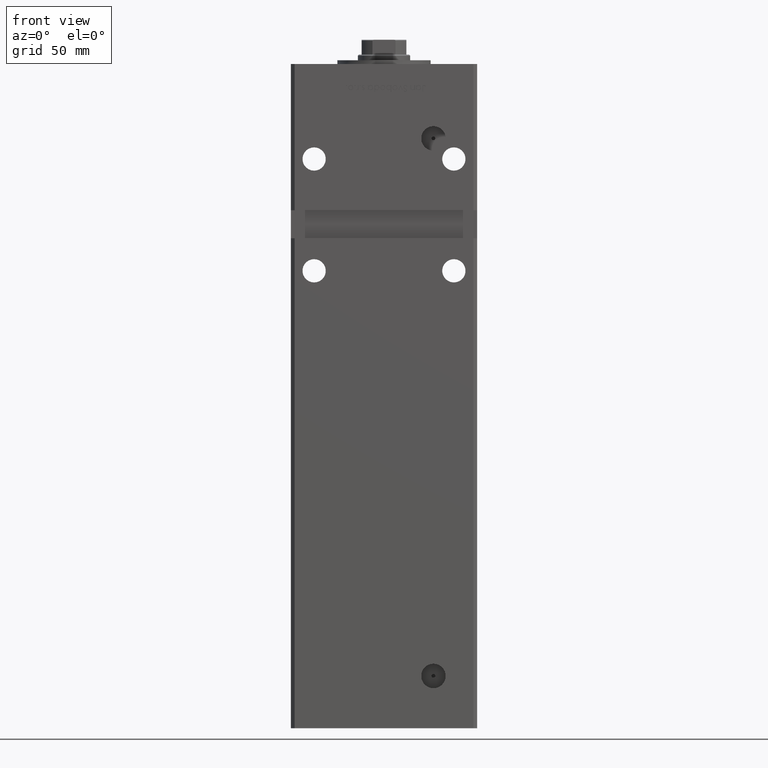
[diagram: clean part render]
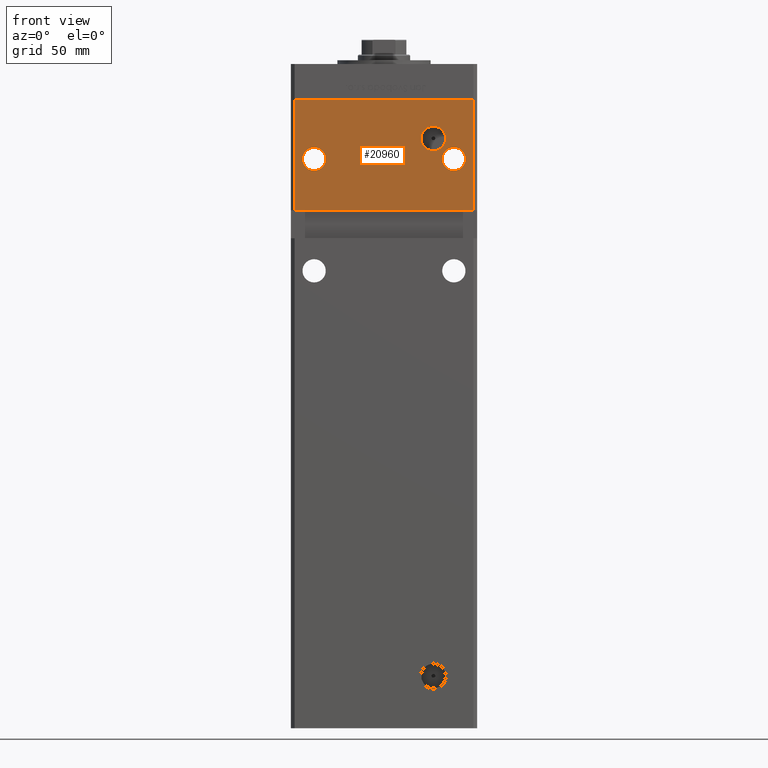
[diagram: same view with one face highlighted and labeled with its STEP entity id]
A machine part, front view. The second image highlights one B-rep face of the part: STEP entity #20960.
In plain terms, the highlighted planar face has unit normal (0, 1, 0).
Its self-contained STEP definition (entity closure, byte-faithful):
#134 = EDGE_CURVE ( 'NONE', #27580, #12963, #18083, .T. ) ;
#354 = LINE ( 'NONE', #33097, #51847 ) ;
#372 = EDGE_CURVE ( 'NONE', #13807, #27580, #354, .T. ) ;
#373 = VECTOR ( 'NONE', #52781, 1000.000000000000000 ) ;
#1136 = VERTEX_POINT ( 'NONE', #50315 ) ;
#1932 = CARTESIAN_POINT ( 'NONE',  ( 47.99999999999998579, -43.50000000000000000, 259.0000000000000000 ) ) ;
#2025 = FACE_OUTER_BOUND ( 'NONE', #21056, .T. ) ;
#2055 = AXIS2_PLACEMENT_3D ( 'NONE', #15086, #27442, #43842 ) ;
#2840 = AXIS2_PLACEMENT_3D ( 'NONE', #26168, #51187, #30742 ) ;
#3025 = CIRCLE ( 'NONE', #11627, 6.249999999999977796 ) ;
#3179 = AXIS2_PLACEMENT_3D ( 'NONE', #8836, #20917, #3780 ) ;
#3780 = DIRECTION ( 'NONE',  ( 0.000000000000000000, 0.000000000000000000, 1.000000000000000000 ) ) ;
#5466 = CIRCLE ( 'NONE', #2055, 6.249999999999977796 ) ;
#6035 = EDGE_CURVE ( 'NONE', #47278, #13807, #12212, .T. ) ;
#7151 = CARTESIAN_POINT ( 'NONE',  ( 47.99999999999998579, -43.50000000000000000, 318.5000000000000000 ) ) ;
#7481 = CIRCLE ( 'NONE', #3179, 6.249999999999977796 ) ;
#7506 = VERTEX_POINT ( 'NONE', #22146 ) ;
#8185 = CARTESIAN_POINT ( 'NONE',  ( -47.99999999999998579, -43.50000000000000000, 318.5000000000000000 ) ) ;
#8836 = CARTESIAN_POINT ( 'NONE',  ( -37.50000000000000000, -43.50000000000000000, 286.5000000000000000 ) ) ;
#9075 = ORIENTED_EDGE ( 'NONE', *, *, #41371, .T. ) ;
#9352 = CIRCLE ( 'NONE', #49735, 6.249999999999977796 ) ;
#9948 = CARTESIAN_POINT ( 'NONE',  ( -47.99999999999998579, -43.50000000000000000, 318.5000000000000000 ) ) ;
#11060 = CIRCLE ( 'NONE', #23926, 6.579999999999975202 ) ;
#11173 = ORIENTED_EDGE ( 'NONE', *, *, #134, .F. ) ;
#11403 = ORIENTED_EDGE ( 'NONE', *, *, #28720, .T. ) ;
#11627 = AXIS2_PLACEMENT_3D ( 'NONE', #14783, #18798, #31154 ) ;
#11992 = ORIENTED_EDGE ( 'NONE', *, *, #49029, .T. ) ;
#12212 = LINE ( 'NONE', #8185, #30434 ) ;
#12271 = ORIENTED_EDGE ( 'NONE', *, *, #47130, .T. ) ;
#12963 = VERTEX_POINT ( 'NONE', #47912 ) ;
#13807 = VERTEX_POINT ( 'NONE', #7151 ) ;
#14376 = FACE_BOUND ( 'NONE', #51742, .T. ) ;
#14783 = CARTESIAN_POINT ( 'NONE',  ( 37.50000000000000000, -43.50000000000000000, 286.5000000000000000 ) ) ;
#14892 = DIRECTION ( 'NONE',  ( 0.000000000000000000, 0.000000000000000000, 1.000000000000000000 ) ) ;
#15086 = CARTESIAN_POINT ( 'NONE',  ( 37.50000000000000000, -43.50000000000000000, 286.5000000000000000 ) ) ;
#15218 = ORIENTED_EDGE ( 'NONE', *, *, #21939, .T. ) ;
#15532 = DIRECTION ( 'NONE',  ( -0.000000000000000000, 1.000000000000000000, -0.000000000000000000 ) ) ;
#15617 = VERTEX_POINT ( 'NONE', #46192 ) ;
#16690 = DIRECTION ( 'NONE',  ( -0.000000000000000000, 1.000000000000000000, -0.000000000000000000 ) ) ;
#17268 = DIRECTION ( 'NONE',  ( 1.000000000000000000, 0.000000000000000000, 0.000000000000000000 ) ) ;
#18083 = LINE ( 'NONE', #51968, #50986 ) ;
#18291 = CIRCLE ( 'NONE', #34454, 6.579999999999975202 ) ;
#18798 = DIRECTION ( 'NONE',  ( 0.000000000000000000, 1.000000000000000000, 0.000000000000000000 ) ) ;
#18930 = PLANE ( 'NONE',  #2840 ) ;
#19978 = CARTESIAN_POINT ( 'NONE',  ( -47.99999999999998579, -43.50000000000000000, 318.5000000000000000 ) ) ;
#20917 = DIRECTION ( 'NONE',  ( 0.000000000000000000, 1.000000000000000000, 0.000000000000000000 ) ) ;
#20960 = ADVANCED_FACE ( 'NONE', ( #14376, #51460, #2025, #42849 ), #18930, .F. ) ;
#21056 = EDGE_LOOP ( 'NONE', ( #11403, #11173, #31654, #26028 ) ) ;
#21939 = EDGE_CURVE ( 'NONE', #49267, #1136, #18291, .T. ) ;
#22146 = CARTESIAN_POINT ( 'NONE',  ( 37.50000000000000000, -43.50000000000000000, 280.2500000000000000 ) ) ;
#23926 = AXIS2_PLACEMENT_3D ( 'NONE', #29302, #16690, #33575 ) ;
#26028 = ORIENTED_EDGE ( 'NONE', *, *, #6035, .F. ) ;
#26168 = CARTESIAN_POINT ( 'NONE',  ( -47.99999999999998579, -43.50000000000000000, 318.5000000000000000 ) ) ;
#27442 = DIRECTION ( 'NONE',  ( 0.000000000000000000, 1.000000000000000000, 0.000000000000000000 ) ) ;
#27580 = VERTEX_POINT ( 'NONE', #1932 ) ;
#27714 = EDGE_CURVE ( 'NONE', #7506, #15617, #5466, .T. ) ;
#28720 = EDGE_CURVE ( 'NONE', #47278, #12963, #32588, .T. ) ;
#29302 = CARTESIAN_POINT ( 'NONE',  ( 26.49999999999995381, -43.50000000000000000, 297.5000000000000000 ) ) ;
#30434 = VECTOR ( 'NONE', #17268, 1000.000000000000000 ) ;
#30742 = DIRECTION ( 'NONE',  ( 0.000000000000000000, -0.000000000000000000, 1.000000000000000000 ) ) ;
#30972 = EDGE_CURVE ( 'NONE', #15617, #7506, #3025, .T. ) ;
#31154 = DIRECTION ( 'NONE',  ( 0.000000000000000000, 0.000000000000000000, 1.000000000000000000 ) ) ;
#31588 = CARTESIAN_POINT ( 'NONE',  ( -37.50000000000000000, -43.50000000000000000, 280.2500000000000000 ) ) ;
#31654 = ORIENTED_EDGE ( 'NONE', *, *, #372, .F. ) ;
#31662 = EDGE_LOOP ( 'NONE', ( #15218, #12271 ) ) ;
#31813 = CARTESIAN_POINT ( 'NONE',  ( -37.50000000000000000, -43.50000000000000000, 292.7499999999999432 ) ) ;
#32423 = DIRECTION ( 'NONE',  ( 0.000000000000000000, 0.000000000000000000, -1.000000000000000000 ) ) ;
#32588 = LINE ( 'NONE', #19978, #373 ) ;
#33097 = CARTESIAN_POINT ( 'NONE',  ( 47.99999999999998579, -43.50000000000000000, 318.5000000000000000 ) ) ;
#33575 = DIRECTION ( 'NONE',  ( 0.000000000000000000, 0.000000000000000000, -1.000000000000000000 ) ) ;
#33683 = ORIENTED_EDGE ( 'NONE', *, *, #27714, .T. ) ;
#34393 = VERTEX_POINT ( 'NONE', #31588 ) ;
#34454 = AXIS2_PLACEMENT_3D ( 'NONE', #52880, #15532, #32423 ) ;
#34461 = DIRECTION ( 'NONE',  ( -1.000000000000000000, -0.000000000000000000, -0.000000000000000000 ) ) ;
#34544 = EDGE_LOOP ( 'NONE', ( #9075, #11992 ) ) ;
#41371 = EDGE_CURVE ( 'NONE', #49993, #34393, #7481, .T. ) ;
#42494 = CARTESIAN_POINT ( 'NONE',  ( 26.49999999999995381, -43.50000000000000000, 290.9200000000000159 ) ) ;
#42849 = FACE_BOUND ( 'NONE', #31662, .T. ) ;
#43842 = DIRECTION ( 'NONE',  ( 0.000000000000000000, 0.000000000000000000, 1.000000000000000000 ) ) ;
#46192 = CARTESIAN_POINT ( 'NONE',  ( 37.50000000000000000, -43.50000000000000000, 292.7499999999999432 ) ) ;
#47130 = EDGE_CURVE ( 'NONE', #1136, #49267, #11060, .T. ) ;
#47278 = VERTEX_POINT ( 'NONE', #9948 ) ;
#47912 = CARTESIAN_POINT ( 'NONE',  ( -47.99999999999998579, -43.50000000000000000, 259.0000000000000000 ) ) ;
#47953 = DIRECTION ( 'NONE',  ( 0.000000000000000000, 1.000000000000000000, 0.000000000000000000 ) ) ;
#49029 = EDGE_CURVE ( 'NONE', #34393, #49993, #9352, .T. ) ;
#49259 = ORIENTED_EDGE ( 'NONE', *, *, #30972, .T. ) ;
#49267 = VERTEX_POINT ( 'NONE', #42494 ) ;
#49529 = DIRECTION ( 'NONE',  ( -0.000000000000000000, -0.000000000000000000, -1.000000000000000000 ) ) ;
#49735 = AXIS2_PLACEMENT_3D ( 'NONE', #51712, #47953, #14892 ) ;
#49993 = VERTEX_POINT ( 'NONE', #31813 ) ;
#50315 = CARTESIAN_POINT ( 'NONE',  ( 26.49999999999995381, -43.50000000000000000, 304.0799999999999841 ) ) ;
#50986 = VECTOR ( 'NONE', #34461, 1000.000000000000000 ) ;
#51187 = DIRECTION ( 'NONE',  ( 0.000000000000000000, 1.000000000000000000, 0.000000000000000000 ) ) ;
#51460 = FACE_BOUND ( 'NONE', #34544, .T. ) ;
#51712 = CARTESIAN_POINT ( 'NONE',  ( -37.50000000000000000, -43.50000000000000000, 286.5000000000000000 ) ) ;
#51742 = EDGE_LOOP ( 'NONE', ( #49259, #33683 ) ) ;
#51847 = VECTOR ( 'NONE', #49529, 1000.000000000000000 ) ;
#51968 = CARTESIAN_POINT ( 'NONE',  ( -49.99999999999998579, -43.50000000000000000, 259.0000000000000000 ) ) ;
#52781 = DIRECTION ( 'NONE',  ( -0.000000000000000000, -0.000000000000000000, -1.000000000000000000 ) ) ;
#52880 = CARTESIAN_POINT ( 'NONE',  ( 26.49999999999995381, -43.50000000000000000, 297.5000000000000000 ) ) ;